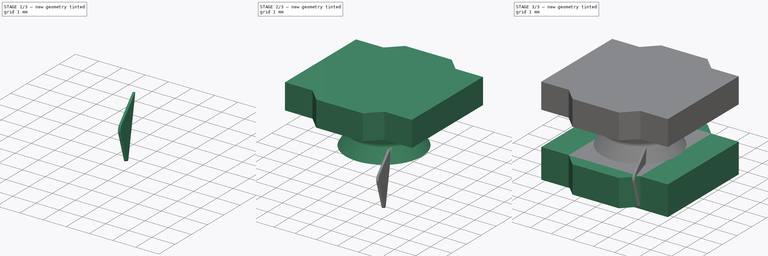
[diagram: build sequence overview — one tinted view per stage of 3, left to right]
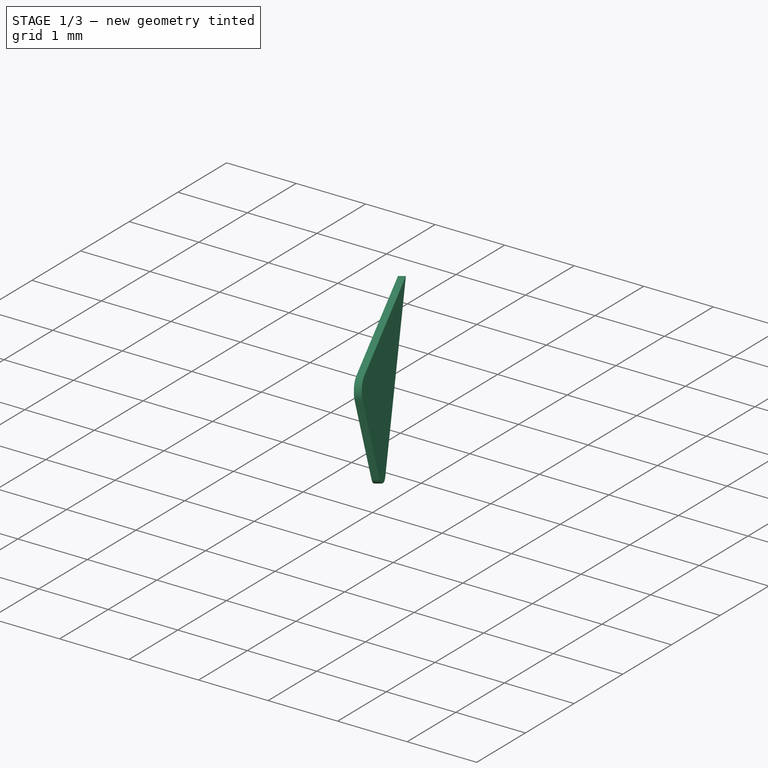
[diagram: stage 1 of 3 — iso view after this stage's code; geometry added in this stage tinted green]
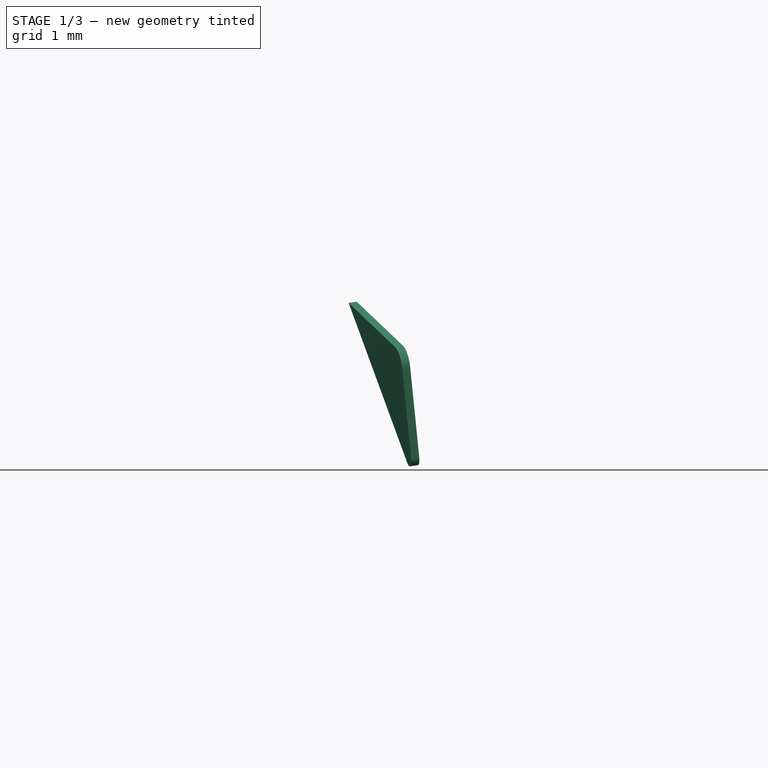
[diagram: stage 1 of 3 — front view after this stage's code; geometry added in this stage tinted green]
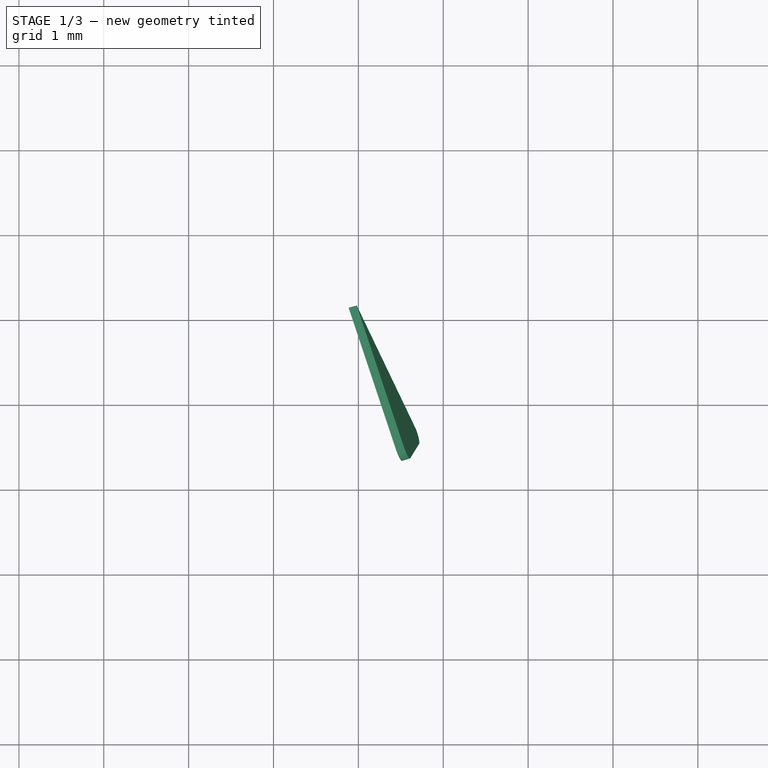
[diagram: stage 1 of 3 — top view after this stage's code; geometry added in this stage tinted green]
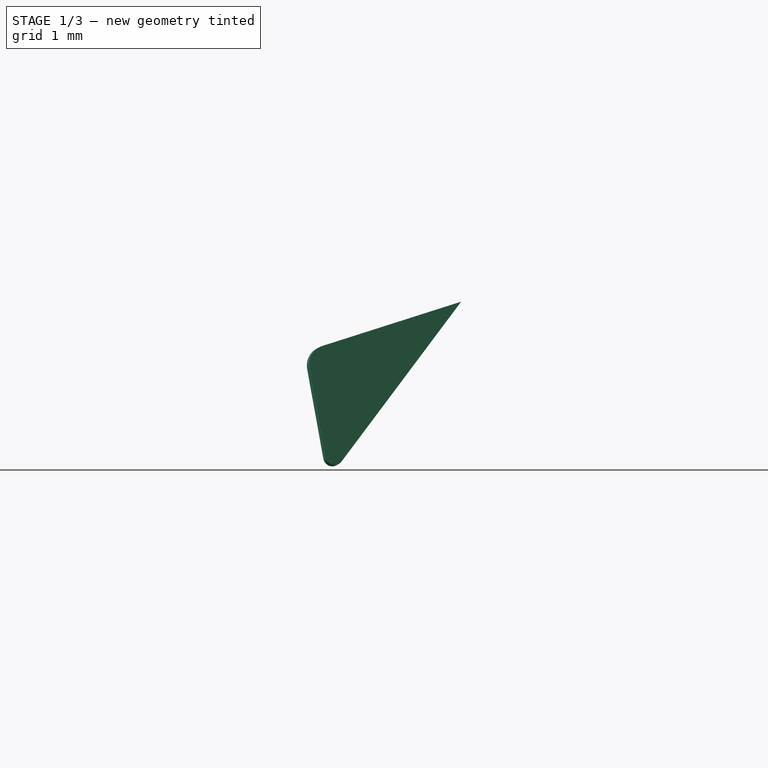
[diagram: stage 1 of 3 — right view after this stage's code; geometry added in this stage tinted green]
FCSTD DOCUMENT  (FreeCAD 0.15R4671 (Git))
Label: L_Bourns_SRN6045TA
License: All rights reserved
LicenseURL: http://en.wikipedia.org/wiki/All_rights_reserved
objects: Sketcher::SketchObject×5, PartDesign::Pad×4, PartDesign::Revolution×1, Part::Mirroring×1, Part::Feature×1
note: 17 computed .brp shape members not serialized (recipe doc carries the construction recipe); baked Part::Feature solids carry a one-line shape summary decoded from their .brp

FEATURE [Sketcher::SketchObject] Sketch004
  Placement = pos=(1.1,0,0) rot=(0.725366,0.486746,0.486746;2.0944rad)
  sketch-geometry (5):
    g0: LineSegment StartX=0.592092 StartY=0.111316 StartZ=0 EndX=0.555024 EndY=1.18651 EndZ=0
    g1: LineSegment StartX=0.748159 StartY=1.42808 StartZ=0 EndX=2.52224 EndY=1.76462 EndZ=0
    g2: LineSegment StartX=2.52224 StartY=1.76462 StartZ=0 EndX=0.775467 EndY=0.0384071 EndZ=0
    g3: ArcOfCircle CenterX=0.699749 CenterY=0.115027 CenterZ=0 NormalX=0 NormalY=0 NormalZ=1 Radius=0.107721 StartAngle=3.17606 EndAngle=5.49186
    g4: ArcOfCircle CenterX=0.792431 CenterY=1.19469 CenterZ=0 NormalX=0 NormalY=0 NormalZ=1 Radius=0.237549 StartAngle=1.75826 EndAngle=3.17606
  constraints (5):
    c: Coincident(g1,g2)
    c: Tangent(g0,g3) = 1.5708
    c: Tangent(g2,g3) = 1.5708
    c: Tangent(g0,g4) = 1.5708
    c: Tangent(g1,g4) = 1.5708
FEATURE [PartDesign::Pad] Pad003
  Length = 0.1
  Length2 = 100
  Placement = pos=(1.1,0,0) rot=(0.725366,0.486746,0.486746;2.0944rad)
  Sketch = -> Sketch004
  Type = 0
FEATURE [Part::Mirroring] Part__Mirroring  label="Pad003 (Mirror #1)"
  Base = (3,0,0)
  Normal = (1,0,0)
  Source = -> Pad003
FEATURE [Part::Feature] Shape  label="L_Bourns_SRN6045TA"
  shape: bbox 6 x 6 x 4.2 mm, 60 faces (baked)
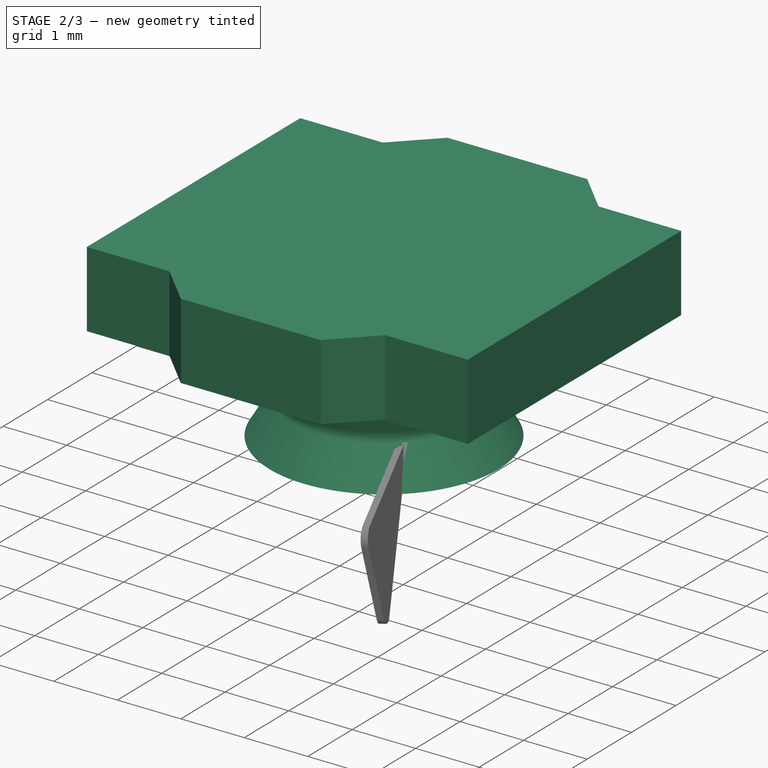
[diagram: stage 2 of 3 — iso view after this stage's code; geometry added in this stage tinted green]
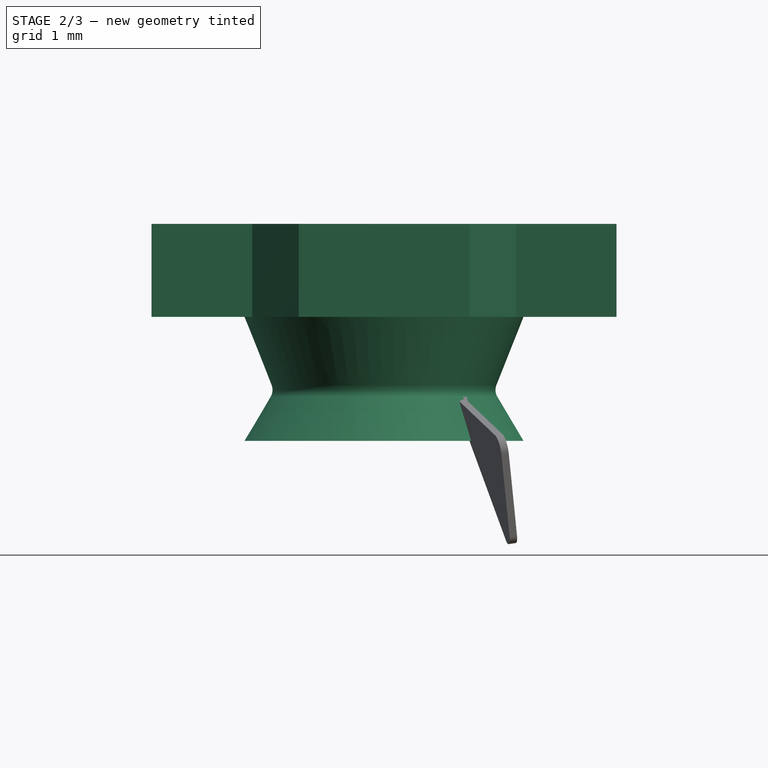
[diagram: stage 2 of 3 — front view after this stage's code; geometry added in this stage tinted green]
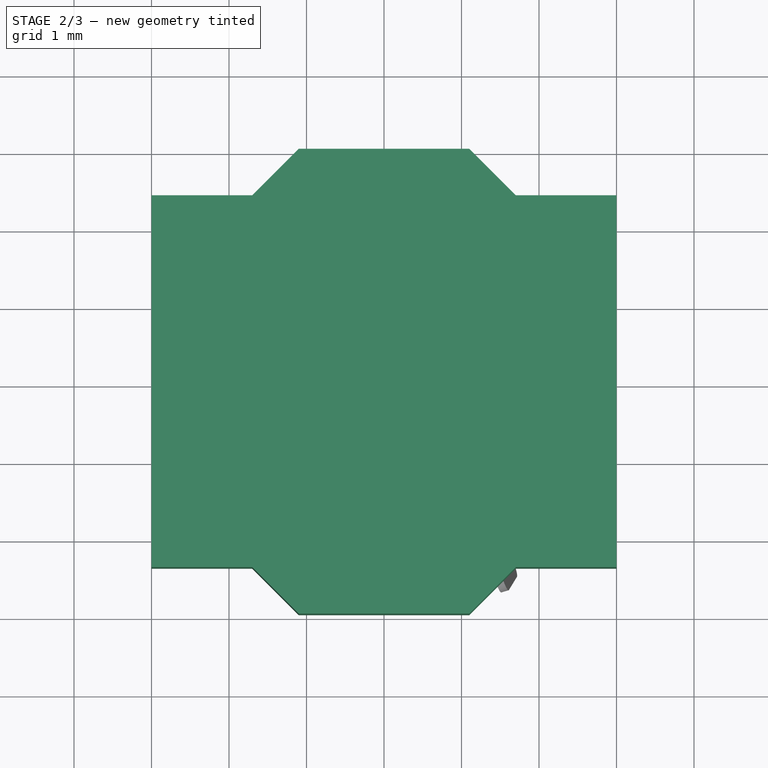
[diagram: stage 2 of 3 — top view after this stage's code; geometry added in this stage tinted green]
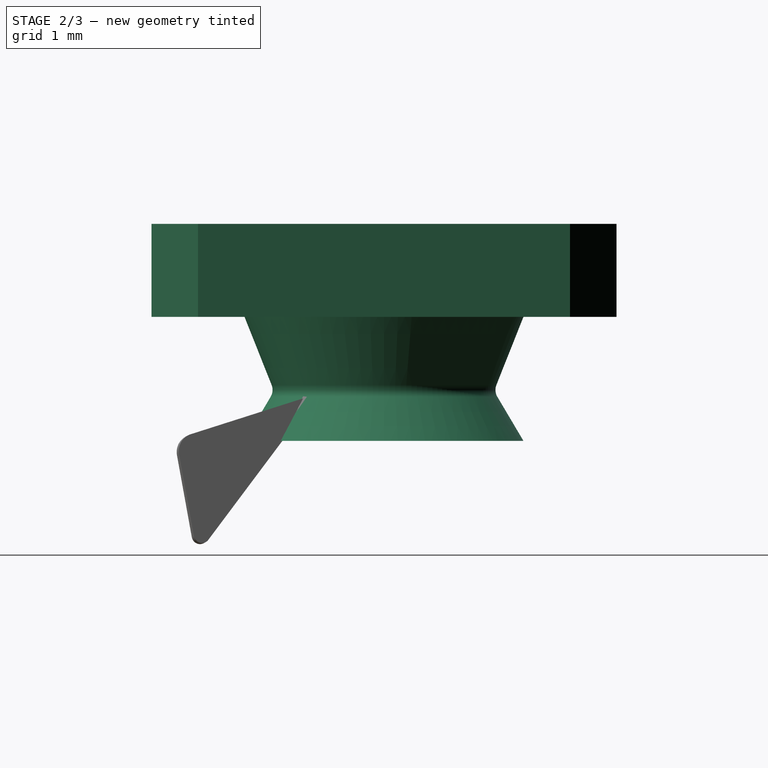
[diagram: stage 2 of 3 — right view after this stage's code; geometry added in this stage tinted green]
FEATURE [Sketcher::SketchObject] Sketch002
  Placement = pos=(0,0,3) rot=(0,0,1;0rad)
  sketch-geometry (12):
    g0: LineSegment StartX=0 StartY=5.4 StartZ=0 EndX=0 EndY=0.6 EndZ=0
    g1: LineSegment StartX=0 StartY=0.6 StartZ=0 EndX=1.3 EndY=0.6 EndZ=0
    g2: LineSegment StartX=1.3 StartY=0.6 StartZ=0 EndX=1.9 EndY=0 EndZ=0
    g3: LineSegment StartX=1.9 StartY=0 StartZ=0 EndX=4.1 EndY=0 EndZ=0
    g4: LineSegment StartX=4.1 StartY=0 StartZ=0 EndX=4.7 EndY=0.6 EndZ=0
    g5: LineSegment StartX=4.7 StartY=0.6 StartZ=0 EndX=6 EndY=0.6 EndZ=0
    g6: LineSegment StartX=6 StartY=0.6 StartZ=0 EndX=6 EndY=5.4 EndZ=0
    g7: LineSegment StartX=6 StartY=5.4 StartZ=0 EndX=4.7 EndY=5.4 EndZ=0
    g8: LineSegment StartX=4.7 StartY=5.4 StartZ=0 EndX=4.1 EndY=6 EndZ=0
    g9: LineSegment StartX=4.1 StartY=6 StartZ=0 EndX=1.9 EndY=6 EndZ=0
    g10: LineSegment StartX=1.9 StartY=6 StartZ=0 EndX=1.3 EndY=5.4 EndZ=0
    g11: LineSegment StartX=1.3 StartY=5.4 StartZ=0 EndX=0 EndY=5.4 EndZ=0
  constraints (36):
    c: PointOnObject(g0,g-2)
    c: PointOnObject(g0,g-2)
    c: Coincident(g0,g1)
    c: Horizontal(g1)
    c: Coincident(g1,g2)
    c: Coincident(g2,g3)
    c: Horizontal(g3)
    c: Coincident(g3,g4)
    c: Coincident(g4,g5)
    c: Horizontal(g5)
    c: Coincident(g5,g6)
    c: Vertical(g6)
    c: Coincident(g6,g7)
    c: Horizontal(g7)
    c: Coincident(g7,g8)
    c: Coincident(g8,g9)
    c: Horizontal(g9)
    c: Coincident(g9,g10)
    c: Coincident(g10,g11)
    c: Coincident(g11,g0)
    c: Equal(g0,g6)
    c: Equal(g9,g3)
    c: Distance(g0) = 4.8
    c: Distance(g-1,g0) = 0.6
    c: PointOnObject(g2,g-1)
    c: Distance(g-1,g2) = 1.9
    c: Angle(g-1,g2) = 2.35619
    c: Equal(g2,g4)
    c: Angle(g4,g-1) = 2.35619
    c: Equal(g5,g1)
    c: Equal(g11,g5)
    c: Parallel(g11,g5)
    c: Equal(g8,g4)
    c: Equal(g10,g4)
    c: Distance(g8,g3) = 6
    c: Distance(g0,g6) = 6
FEATURE [PartDesign::Pad] Pad002
  Length = 1.2
  Length2 = 100
  Placement = pos=(0,0,3) rot=(0,0,1;0rad)
  Sketch = -> Sketch002
  Type = 0
FEATURE [Sketcher::SketchObject] Sketch003
  Placement = pos=(0,3,0) rot=(1,0,0;1.5708rad)
  sketch-geometry (9):
    g0: LineSegment [constr] StartX=4.8 StartY=0 StartZ=0 EndX=4.8 EndY=1.4 EndZ=0
    g1: LineSegment [constr] StartX=4.8 StartY=3 StartZ=0 EndX=4.8 EndY=4.2 EndZ=0
    g2: LineSegment StartX=4.8 StartY=1.4 StartZ=0 EndX=4.46306 EndY=1.96884 EndZ=0
    g3: LineSegment StartX=4.45103 StartY=2.12243 StartZ=0 EndX=4.8 EndY=3 EndZ=0
    g4: LineSegment StartX=4.8 StartY=3 StartZ=0 EndX=3 EndY=3 EndZ=0
    g5: LineSegment StartX=3 StartY=3 StartZ=0 EndX=3 EndY=1.4 EndZ=0
    g6: LineSegment StartX=3 StartY=1.4 StartZ=0 EndX=4.8 EndY=1.4 EndZ=0
    g7: ArcOfCircle CenterX=4.61337 CenterY=2.05787 CenterZ=0 NormalX=0 NormalY=0 NormalZ=1 Radius=0.174702 StartAngle=2.76311 EndAngle=3.67636
    g8: LineSegment [constr] StartX=3 StartY=0 StartZ=0 EndX=3 EndY=5.58224 EndZ=0
  constraints (23):
    c: PointOnObject(g0,g-1)
    c: Vertical(g0)
    c: DistanceX(g-2,g0) = 4.8
    c: Distance(g0) = 1.4
    c: Vertical(g1)
    c: DistanceY(g-1,g1) = 3
    c: Distance(g1) = 1.2
    c: DistanceX(g-2,g1) = 4.8
    c: Coincident(g0,g2)
    c: Coincident(g3,g1)
    c: Coincident(g3,g4)
    c: Horizontal(g4)
    c: Coincident(g4,g5)
    c: Vertical(g5)
    c: Coincident(g5,g6)
    c: Coincident(g6,g2)
    c: Horizontal(g6)
    c: DistanceX(g-2,g5) = 3
    c: Tangent(g3,g7) = 1.5708
    c: Tangent(g2,g7) = 1.5708
    c: PointOnObject(g8,g-1)
    c: Vertical(g8)
    c: DistanceX(g-2,g8) = 3
FEATURE [PartDesign::Revolution] Revolution
  Angle = 360
  Axis = (0,0,5.58224)
  Base = (3,3,0)
  Placement = pos=(0,3,0) rot=(1,0,0;1.5708rad)
  ReferenceAxis = -> Sketch003 [Axis2]
  Reversed = true
  Sketch = -> Sketch003
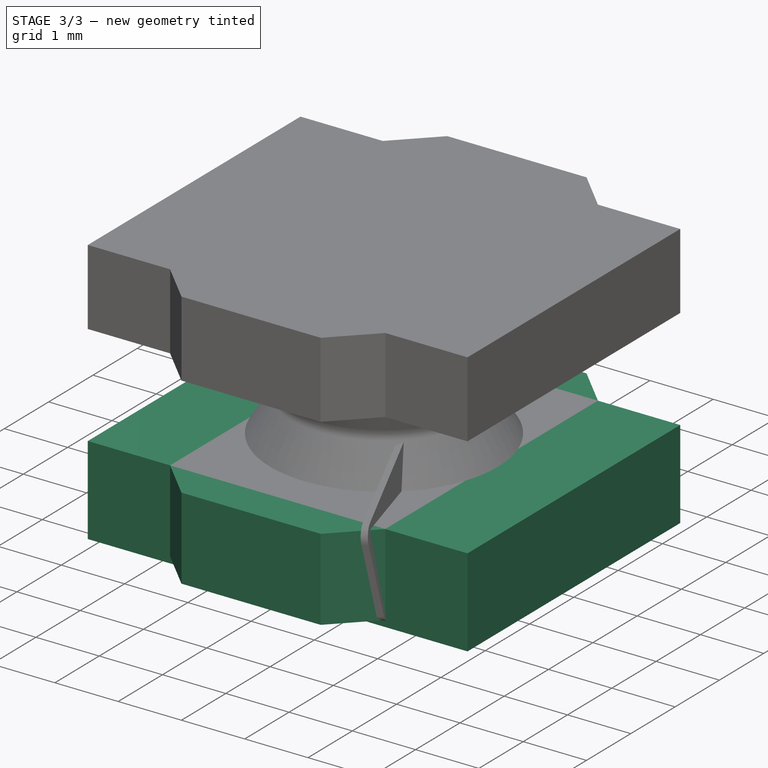
[diagram: stage 3 of 3 — iso view after this stage's code; geometry added in this stage tinted green]
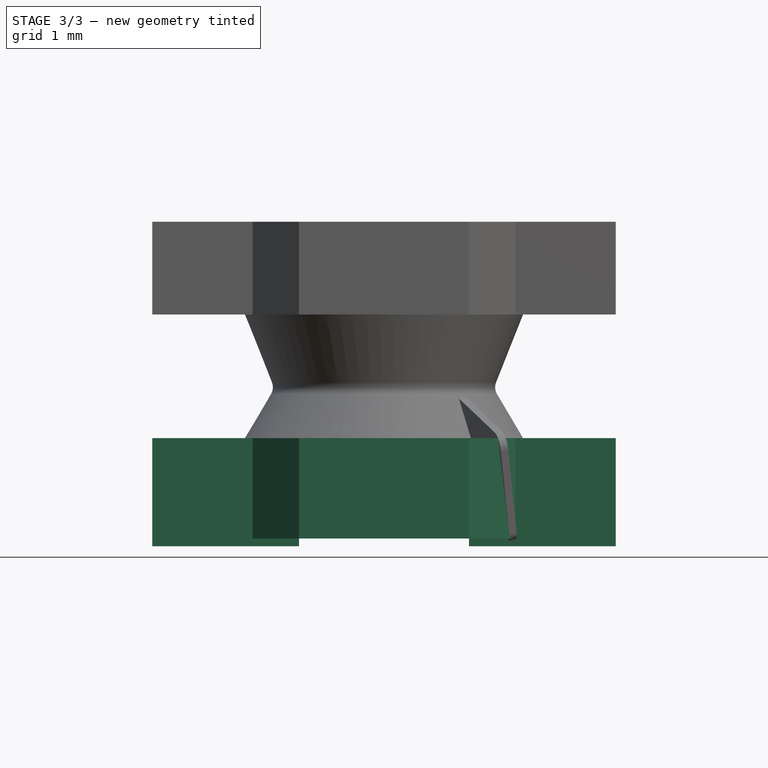
[diagram: stage 3 of 3 — front view after this stage's code; geometry added in this stage tinted green]
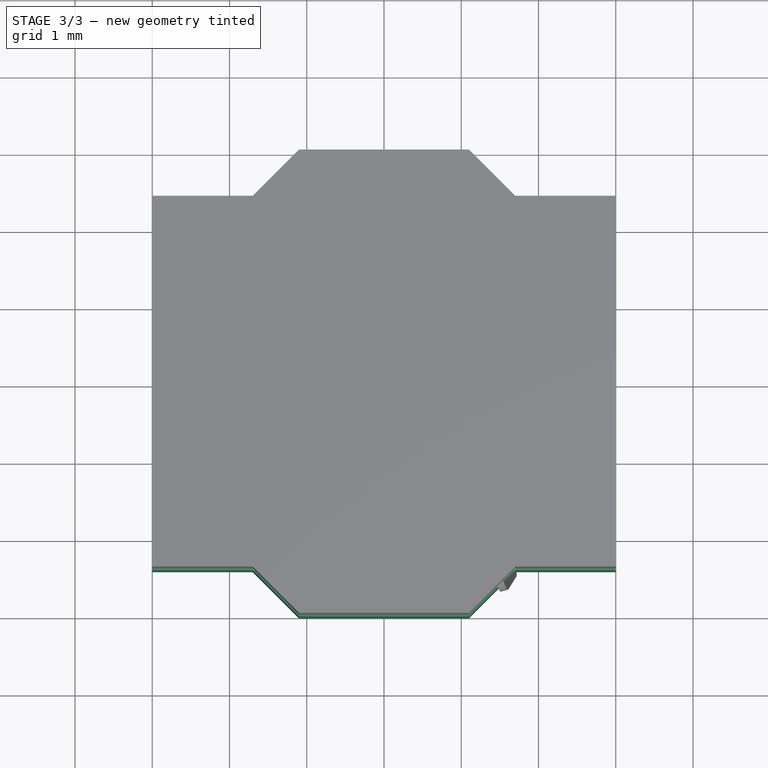
[diagram: stage 3 of 3 — top view after this stage's code; geometry added in this stage tinted green]
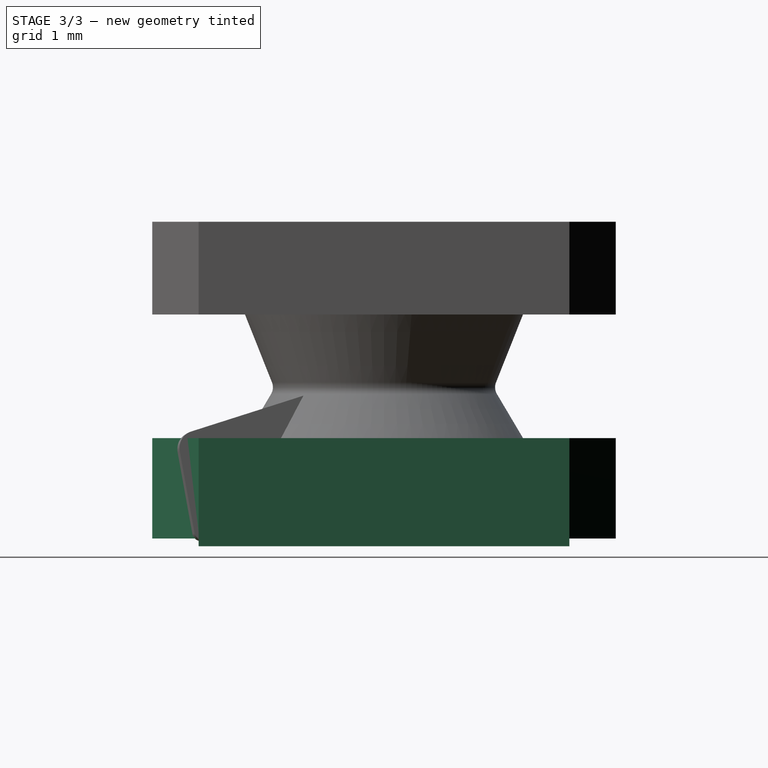
[diagram: stage 3 of 3 — right view after this stage's code; geometry added in this stage tinted green]
FEATURE [Sketcher::SketchObject] Sketch
  Placement = pos=(0,0,0.1) rot=(0,0,1;0rad)
  sketch-geometry (12):
    g0: LineSegment StartX=0 StartY=5.4 StartZ=0 EndX=0 EndY=0.6 EndZ=0
    g1: LineSegment StartX=0 StartY=0.6 StartZ=0 EndX=1.3 EndY=0.6 EndZ=0
    g2: LineSegment StartX=1.3 StartY=0.6 StartZ=0 EndX=1.9 EndY=0 EndZ=0
    g3: LineSegment StartX=1.9 StartY=0 StartZ=0 EndX=4.1 EndY=0 EndZ=0
    g4: LineSegment StartX=4.1 StartY=0 StartZ=0 EndX=4.7 EndY=0.6 EndZ=0
    g5: LineSegment StartX=4.7 StartY=0.6 StartZ=0 EndX=6 EndY=0.6 EndZ=0
    g6: LineSegment StartX=6 StartY=0.6 StartZ=0 EndX=6 EndY=5.4 EndZ=0
    g7: LineSegment StartX=6 StartY=5.4 StartZ=0 EndX=4.7 EndY=5.4 EndZ=0
    g8: LineSegment StartX=4.7 StartY=5.4 StartZ=0 EndX=4.1 EndY=6 EndZ=0
    g9: LineSegment StartX=4.1 StartY=6 StartZ=0 EndX=1.9 EndY=6 EndZ=0
    g10: LineSegment StartX=1.9 StartY=6 StartZ=0 EndX=1.3 EndY=5.4 EndZ=0
    g11: LineSegment StartX=1.3 StartY=5.4 StartZ=0 EndX=0 EndY=5.4 EndZ=0
  constraints (36):
    c: PointOnObject(g0,g-2)
    c: PointOnObject(g0,g-2)
    c: Coincident(g0,g1)
    c: Horizontal(g1)
    c: Coincident(g1,g2)
    c: Coincident(g2,g3)
    c: Horizontal(g3)
    c: Coincident(g3,g4)
    c: Coincident(g4,g5)
    c: Horizontal(g5)
    c: Coincident(g5,g6)
    c: Vertical(g6)
    c: Coincident(g6,g7)
    c: Horizontal(g7)
    c: Coincident(g7,g8)
    c: Coincident(g8,g9)
    c: Horizontal(g9)
    c: Coincident(g9,g10)
    c: Coincident(g10,g11)
    c: Coincident(g11,g0)
    c: Equal(g0,g6)
    c: Equal(g9,g3)
    c: Distance(g0) = 4.8
    c: Distance(g-1,g0) = 0.6
    c: PointOnObject(g2,g-1)
    c: Distance(g-1,g2) = 1.9
    c: Angle(g-1,g2) = 2.35619
    c: Equal(g2,g4)
    c: Angle(g4,g-1) = 2.35619
    c: Equal(g5,g1)
    c: Equal(g11,g5)
    c: Parallel(g11,g5)
    c: Equal(g8,g4)
    c: Equal(g10,g4)
    c: Distance(g8,g3) = 6
    c: Distance(g0,g6) = 6
FEATURE [PartDesign::Pad] Pad
  Length = 1.3
  Length2 = 100
  Placement = pos=(0,0,0.1) rot=(0,0,1;0rad)
  Sketch = -> Sketch
  Type = 0
FEATURE [Sketcher::SketchObject] Sketch001
  sketch-geometry (8):
    g0: LineSegment StartX=0 StartY=5.4 StartZ=0 EndX=1.9 EndY=5.4 EndZ=0
    g1: LineSegment StartX=1.9 StartY=5.4 StartZ=0 EndX=1.9 EndY=0.6 EndZ=0
    g2: LineSegment StartX=1.9 StartY=0.6 StartZ=0 EndX=0 EndY=0.6 EndZ=0
    g3: LineSegment StartX=0 StartY=0.6 StartZ=0 EndX=0 EndY=5.4 EndZ=0
    g4: LineSegment StartX=4.1 StartY=5.4 StartZ=0 EndX=6 EndY=5.4 EndZ=0
    g5: LineSegment StartX=6 StartY=5.4 StartZ=0 EndX=6 EndY=0.6 EndZ=0
    g6: LineSegment StartX=6 StartY=0.6 StartZ=0 EndX=4.1 EndY=0.6 EndZ=0
    g7: LineSegment StartX=4.1 StartY=0.6 StartZ=0 EndX=4.1 EndY=5.4 EndZ=0
  constraints (24):
    c: Coincident(g0,g1)
    c: Coincident(g1,g2)
    c: Coincident(g2,g3)
    c: Coincident(g3,g0)
    c: Horizontal(g0)
    c: Horizontal(g2)
    c: Vertical(g1)
    c: Vertical(g3)
    c: PointOnObject(g0,g-2)
    c: Distance(g3) = 4.8
    c: Distance(g2) = 1.9
    c: Distance(g-1,g2) = 0.6
    c: Coincident(g4,g5)
    c: Coincident(g5,g6)
    c: Coincident(g6,g7)
    c: Coincident(g7,g4)
    c: Horizontal(g4)
    c: Horizontal(g6)
    c: Vertical(g5)
    c: Vertical(g7)
    c: Equal(g0,g4)
    c: Equal(g5,g1)
    c: DistanceY(g-1,g6) = 0.6
    c: Distance(g0,g4) = 2.2
FEATURE [PartDesign::Pad] Pad001
  Length = 0.1
  Length2 = 100
  Sketch = -> Sketch001
  Type = 0
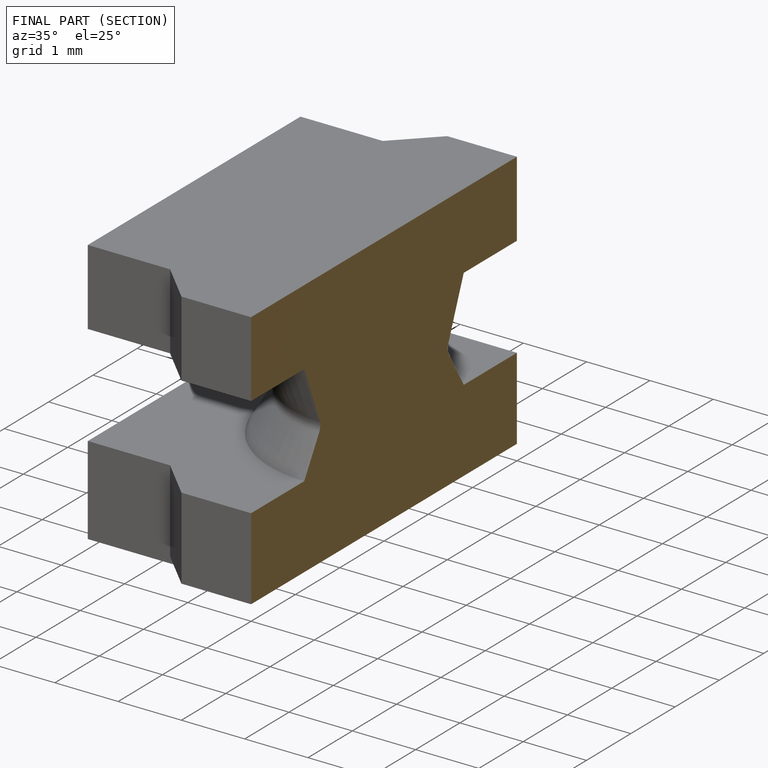
[diagram: finished part — half-section view (interior)]
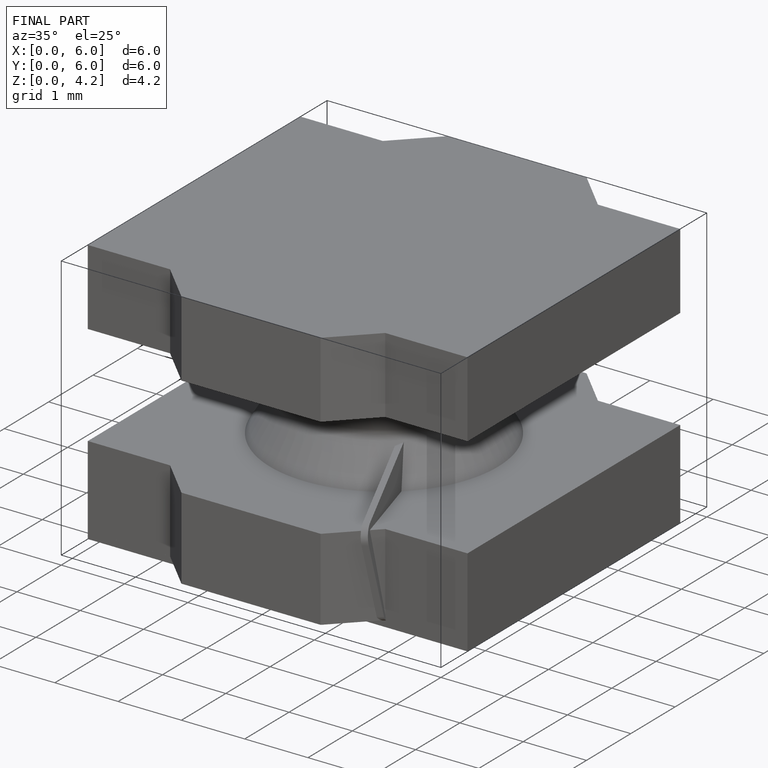
[diagram: finished part — iso view with bounding-box wireframe]
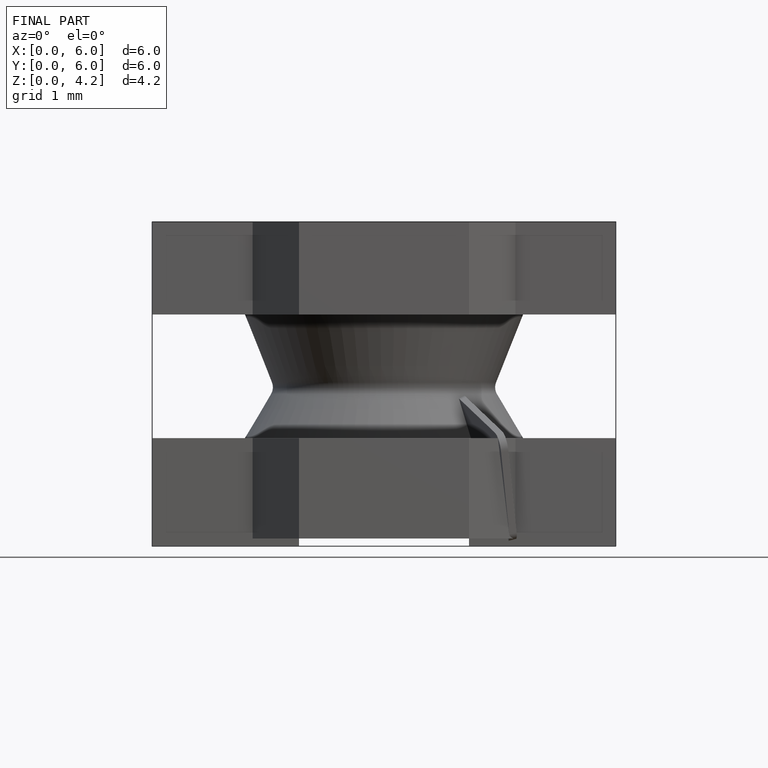
[diagram: finished part — front view with bounding-box wireframe]
